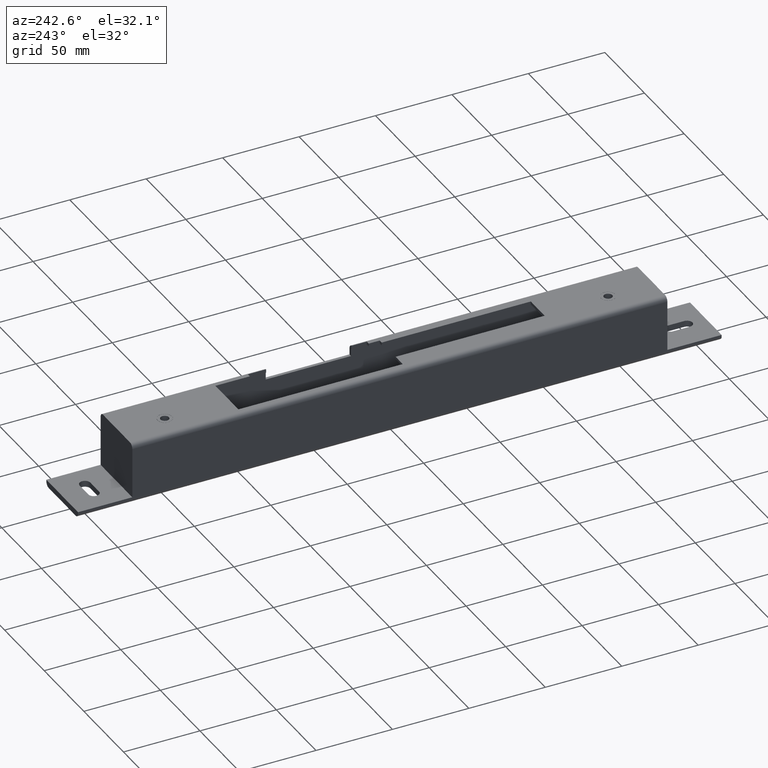
[diagram: clean part render]
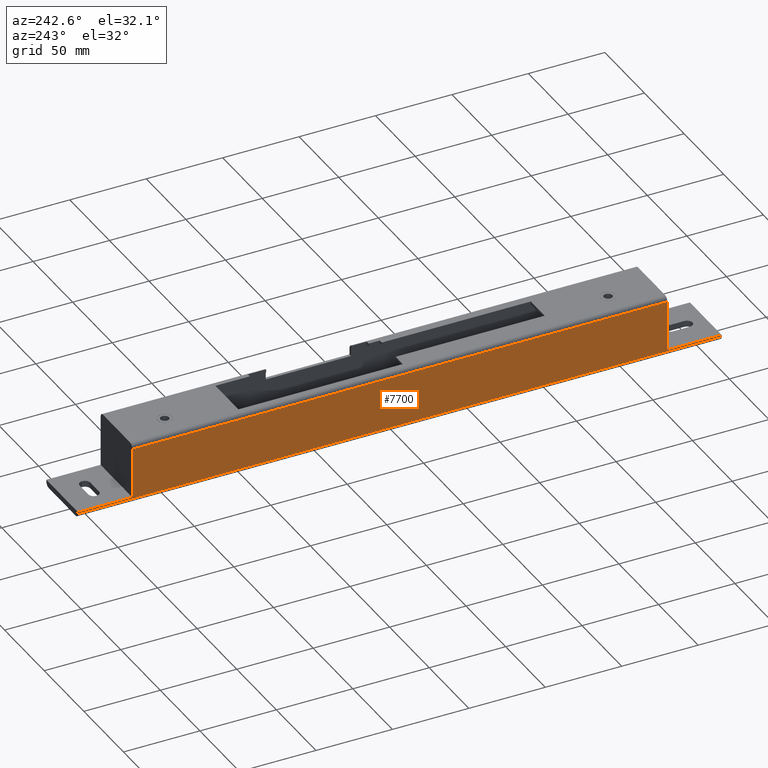
[diagram: same view with one face highlighted and labeled with its STEP entity id]
A machine part, auxiliary view. The second image highlights one B-rep face of the part: STEP entity #7700.
In plain terms, the highlighted planar face has unit normal (1, 0, -0).
Its self-contained STEP definition (entity closure, byte-faithful):
#7 = VERTEX_POINT ( 'NONE', #8102 ) ;
#74 = DIRECTION ( 'NONE',  ( -0.000000000000000000, -1.000000000000000000, -0.000000000000000000 ) ) ;
#147 = EDGE_CURVE ( 'NONE', #6300, #11899, #8731, .T. ) ;
#442 = DIRECTION ( 'NONE',  ( -0.000000000000000000, 1.000000000000000000, -0.000000000000000000 ) ) ;
#482 = LINE ( 'NONE', #12599, #651 ) ;
#651 = VECTOR ( 'NONE', #442, 1000.000000000000000 ) ;
#695 = ORIENTED_EDGE ( 'NONE', *, *, #3184, .T. ) ;
#876 = CARTESIAN_POINT ( 'NONE',  ( -20.00000000000000000, 175.0000000000000000, 17.00000000000001066 ) ) ;
#1684 = ORIENTED_EDGE ( 'NONE', *, *, #3737, .F. ) ;
#2077 = EDGE_CURVE ( 'NONE', #3321, #12374, #3096, .T. ) ;
#2520 = FACE_OUTER_BOUND ( 'NONE', #9614, .T. ) ;
#2705 = EDGE_CURVE ( 'NONE', #7, #12833, #14348, .T. ) ;
#2985 = CARTESIAN_POINT ( 'NONE',  ( -20.00000000000000355, 175.0000000000000000, -19.99999999999999289 ) ) ;
#3037 = CARTESIAN_POINT ( 'NONE',  ( -20.00000000000000355, 175.0000000000000000, -19.99999999999999289 ) ) ;
#3086 = PLANE ( 'NONE',  #9962 ) ;
#3096 = LINE ( 'NONE', #4588, #12157 ) ;
#3184 = EDGE_CURVE ( 'NONE', #13707, #6300, #9286, .T. ) ;
#3321 = VERTEX_POINT ( 'NONE', #6650 ) ;
#3737 = EDGE_CURVE ( 'NONE', #12374, #12833, #4920, .T. ) ;
#4040 = VECTOR ( 'NONE', #12967, 1000.000000000000000 ) ;
#4227 = DIRECTION ( 'NONE',  ( 0.000000000000000000, 0.000000000000000000, 1.000000000000000000 ) ) ;
#4588 = CARTESIAN_POINT ( 'NONE',  ( -20.00000000000000355, 210.5000000000000000, -15.99999999999999289 ) ) ;
#4640 = CARTESIAN_POINT ( 'NONE',  ( -20.00000000000000355, 210.5000000000000000, -16.99999999999999289 ) ) ;
#4920 = LINE ( 'NONE', #2985, #7541 ) ;
#5086 = VECTOR ( 'NONE', #12878, 1000.000000000000000 ) ;
#5195 = CARTESIAN_POINT ( 'NONE',  ( -20.00000000000000355, -175.0000000000000000, -19.99999999999999289 ) ) ;
#5201 = ORIENTED_EDGE ( 'NONE', *, *, #2705, .T. ) ;
#5282 = CARTESIAN_POINT ( 'NONE',  ( -20.00000000000000355, 175.0000000000000000, -16.99999999999999289 ) ) ;
#5306 = CARTESIAN_POINT ( 'NONE',  ( -20.00000000000000355, -210.5000000000000000, -16.99999999999999289 ) ) ;
#5453 = CARTESIAN_POINT ( 'NONE',  ( -20.00000000000000355, 210.5000000000000000, -16.99999999999999289 ) ) ;
#5722 = EDGE_CURVE ( 'NONE', #11899, #8859, #482, .T. ) ;
#6300 = VERTEX_POINT ( 'NONE', #7241 ) ;
#6382 = DIRECTION ( 'NONE',  ( 8.673617379884035472E-17, 0.000000000000000000, 1.000000000000000000 ) ) ;
#6650 = CARTESIAN_POINT ( 'NONE',  ( -20.00000000000000355, 210.5000000000000000, -15.99999999999999289 ) ) ;
#6768 = CARTESIAN_POINT ( 'NONE',  ( -20.00000000000000355, -210.5000000000000000, -15.99999999999999289 ) ) ;
#6994 = LINE ( 'NONE', #5195, #5086 ) ;
#7241 = CARTESIAN_POINT ( 'NONE',  ( -20.00000000000000355, -210.5000000000000000, -16.99999999999999289 ) ) ;
#7541 = VECTOR ( 'NONE', #6382, 1000.000000000000000 ) ;
#7577 = EDGE_CURVE ( 'NONE', #13707, #3321, #10055, .T. ) ;
#7700 = ADVANCED_FACE ( 'NONE', ( #2520 ), #3086, .F. ) ;
#7824 = DIRECTION ( 'NONE',  ( 0.000000000000000000, 0.000000000000000000, 1.000000000000000000 ) ) ;
#8102 = CARTESIAN_POINT ( 'NONE',  ( -20.00000000000000000, -175.0000000000000000, 17.00000000000001066 ) ) ;
#8140 = VECTOR ( 'NONE', #7824, 1000.000000000000000 ) ;
#8429 = VECTOR ( 'NONE', #11303, 1000.000000000000000 ) ;
#8546 = ORIENTED_EDGE ( 'NONE', *, *, #13825, .T. ) ;
#8731 = LINE ( 'NONE', #5306, #11516 ) ;
#8859 = VERTEX_POINT ( 'NONE', #11299 ) ;
#9286 = LINE ( 'NONE', #5282, #4040 ) ;
#9518 = ORIENTED_EDGE ( 'NONE', *, *, #7577, .F. ) ;
#9614 = EDGE_LOOP ( 'NONE', ( #695, #11473, #14162, #8546, #5201, #1684, #14474, #9518 ) ) ;
#9699 = DIRECTION ( 'NONE',  ( 1.000000000000000000, 0.000000000000000000, -8.673617379884035472E-17 ) ) ;
#9962 = AXIS2_PLACEMENT_3D ( 'NONE', #3037, #9699, #10858 ) ;
#10055 = LINE ( 'NONE', #4640, #8140 ) ;
#10090 = CARTESIAN_POINT ( 'NONE',  ( -20.00000000000000000, 175.0000000000000000, 17.00000000000001066 ) ) ;
#10858 = DIRECTION ( 'NONE',  ( -8.673617379884035472E-17, 0.000000000000000000, -1.000000000000000000 ) ) ;
#10890 = CARTESIAN_POINT ( 'NONE',  ( -20.00000000000000355, 175.0000000000000000, -15.99999999999999289 ) ) ;
#11299 = CARTESIAN_POINT ( 'NONE',  ( -20.00000000000000355, -175.0000000000000000, -15.99999999999999289 ) ) ;
#11303 = DIRECTION ( 'NONE',  ( -0.000000000000000000, 1.000000000000000000, -0.000000000000000000 ) ) ;
#11473 = ORIENTED_EDGE ( 'NONE', *, *, #147, .T. ) ;
#11516 = VECTOR ( 'NONE', #4227, 1000.000000000000000 ) ;
#11899 = VERTEX_POINT ( 'NONE', #6768 ) ;
#12157 = VECTOR ( 'NONE', #74, 1000.000000000000000 ) ;
#12374 = VERTEX_POINT ( 'NONE', #10890 ) ;
#12599 = CARTESIAN_POINT ( 'NONE',  ( -20.00000000000000355, -210.5000000000000000, -15.99999999999999289 ) ) ;
#12833 = VERTEX_POINT ( 'NONE', #10090 ) ;
#12878 = DIRECTION ( 'NONE',  ( 8.673617379884035472E-17, 0.000000000000000000, 1.000000000000000000 ) ) ;
#12967 = DIRECTION ( 'NONE',  ( 0.000000000000000000, -1.000000000000000000, 0.000000000000000000 ) ) ;
#13707 = VERTEX_POINT ( 'NONE', #5453 ) ;
#13825 = EDGE_CURVE ( 'NONE', #8859, #7, #6994, .T. ) ;
#14162 = ORIENTED_EDGE ( 'NONE', *, *, #5722, .T. ) ;
#14348 = LINE ( 'NONE', #876, #8429 ) ;
#14474 = ORIENTED_EDGE ( 'NONE', *, *, #2077, .F. ) ;